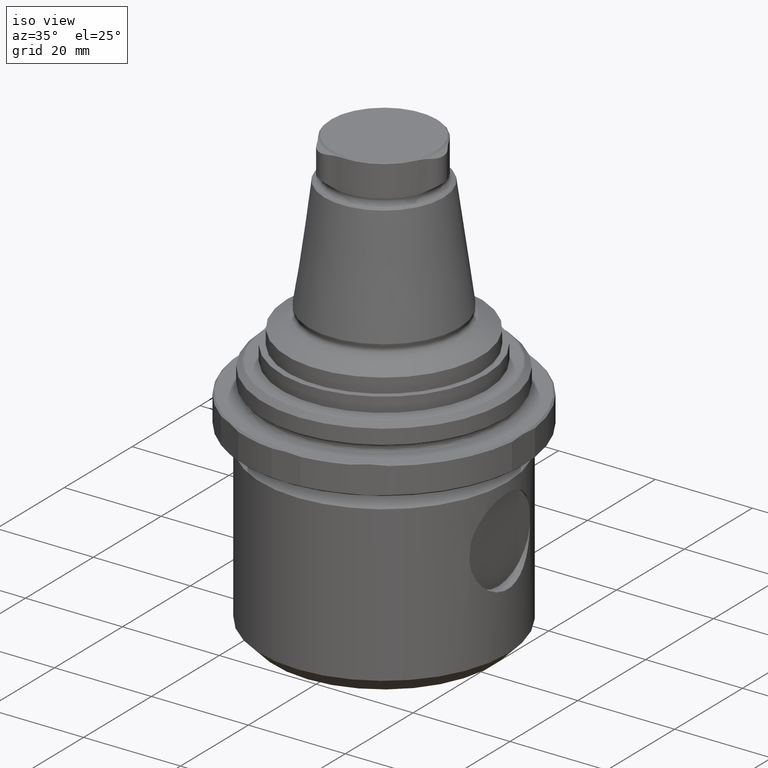
[diagram: clean part render]
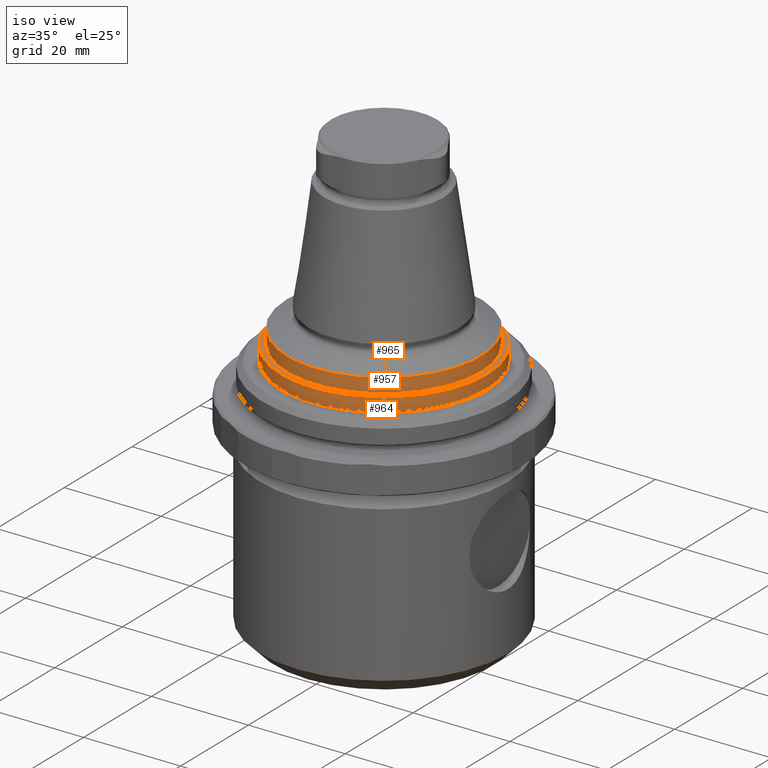
[diagram: same view with one multi-face feature highlighted, each face labeled with its STEP entity id]
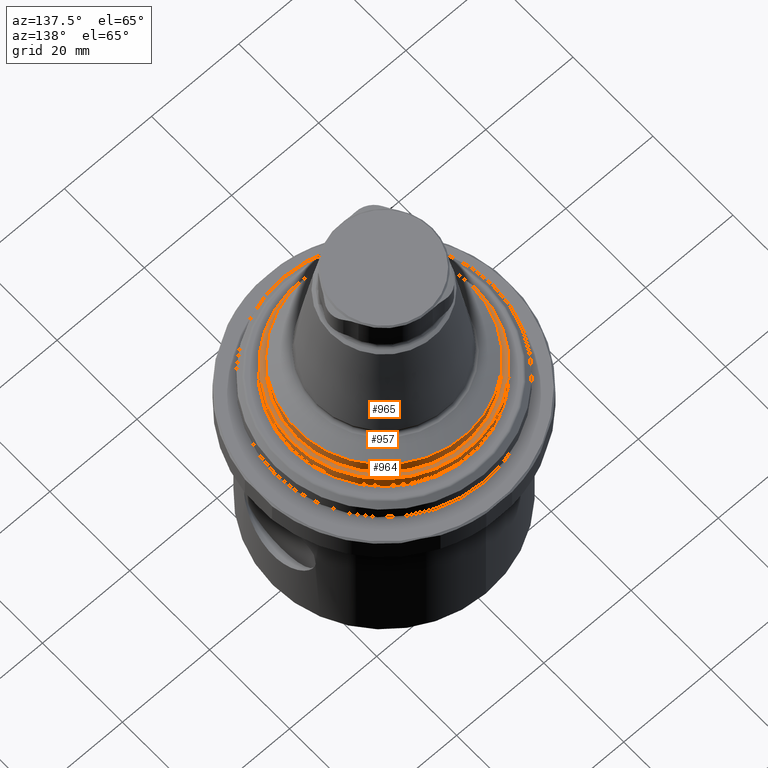
[diagram: same view with one multi-face feature highlighted, each face labeled with its STEP entity id]
A machine part, iso view. The highlighted faces form ONE feature: a stepped (counterbored) hole: 2 coaxial cylindrical walls of radii 20 -> 21.2 mm joined by 1 annular planar shoulder face(s). The faces share edges in the B-rep.
A second angle (auxiliary view) of the same feature is appended — it is thin or edge-on in the first view.
Their STEP definitions:
[1] entity #964 (Cylinder):
#179=ORIENTED_EDGE('',*,*,#444,.T.);
#180=ORIENTED_EDGE('',*,*,#445,.T.);
#444=EDGE_CURVE('',#579,#579,#676,.T.);
#445=EDGE_CURVE('',#580,#580,#677,.T.);
#579=VERTEX_POINT('',#1493);
#580=VERTEX_POINT('',#1495);
#676=CIRCLE('',#1057,21.2);
#677=CIRCLE('',#1058,21.2);
#740=EDGE_LOOP('',(#179));
#741=EDGE_LOOP('',(#180));
#840=FACE_BOUND('',#740,.T.);
#841=FACE_BOUND('',#741,.T.);
#929=CYLINDRICAL_SURFACE('',#1056,21.2);
#964=ADVANCED_FACE('',(#840,#841),#929,.T.);
#1056=AXIS2_PLACEMENT_3D('',#1491,#1205,#1206);
#1057=AXIS2_PLACEMENT_3D('',#1492,#1207,#1208);
#1058=AXIS2_PLACEMENT_3D('',#1494,#1209,#1210);
#1205=DIRECTION('',(-5.5264198129461E-16,7.81688594334958E-18,-1.));
#1206=DIRECTION('',(-1.,9.77164313006873E-16,5.58279830278911E-16));
#1207=DIRECTION('',(5.5264198129461E-16,5.34134317477693E-17,1.));
#1208=DIRECTION('',(1.,-9.77164313006873E-16,-5.58279830278911E-16));
#1209=DIRECTION('',(-5.5264198129461E-16,6.90472036344684E-17,-1.));
#1210=DIRECTION('',(-1.,9.77164313006873E-16,5.58279830278911E-16));
#1491=CARTESIAN_POINT('',(-8.47844763428131E-14,-9.81762604376195E-14,6.5040707856479));
#1492=CARTESIAN_POINT('',(-8.5613439314755E-14,-9.81645351087045E-14,5.0040707856479));
#1493=CARTESIAN_POINT('',(21.1999999999999,-1.1888041854445E-13,5.00407078564789));
#1494=CARTESIAN_POINT('',(-8.39555133708712E-14,-9.81879857665345E-14,8.0040707856479));
#1495=CARTESIAN_POINT('',(-21.2000000000001,-7.74721023307888E-14,8.00407078564792));
[2] entity #957 (Cylinder):
#165=ORIENTED_EDGE('',*,*,#435,.T.);
#166=ORIENTED_EDGE('',*,*,#436,.F.);
#435=EDGE_CURVE('',#570,#570,#667,.T.);
#436=EDGE_CURVE('',#571,#571,#668,.F.);
#570=VERTEX_POINT('',#1468);
#571=VERTEX_POINT('',#1470);
#667=CIRCLE('',#1041,20.);
#668=CIRCLE('',#1042,20.);
#726=EDGE_LOOP('',(#165));
#727=EDGE_LOOP('',(#166));
#826=FACE_BOUND('',#726,.T.);
#827=FACE_BOUND('',#727,.T.);
#926=CYLINDRICAL_SURFACE('',#1040,20.);
#957=ADVANCED_FACE('',(#826,#827),#926,.T.);
#1040=AXIS2_PLACEMENT_3D('',#1466,#1173,#1174);
#1041=AXIS2_PLACEMENT_3D('',#1467,#1175,#1176);
#1042=AXIS2_PLACEMENT_3D('',#1469,#1177,#1178);
#1173=DIRECTION('',(-4.20111564119382E-16,-8.51929323965368E-24,-1.));
#1174=DIRECTION('',(-1.,9.77164313006873E-16,4.20111561806759E-16));
#1175=DIRECTION('',(-4.20111564119382E-16,-8.51929323965368E-24,-1.));
#1176=DIRECTION('',(-1.,9.77164313006873E-16,4.20111561806759E-16));
#1177=DIRECTION('',(5.5264198129461E-16,-6.90472036344684E-17,1.));
#1178=DIRECTION('',(1.,0.,-5.5264198129461E-16));
#1466=CARTESIAN_POINT('',(-6.77586978396813E-14,-9.81645347466345E-14,47.5040707856479));
#1467=CARTESIAN_POINT('',(-8.30927699300387E-14,-9.81645350575887E-14,11.0040707856479));
#1468=CARTESIAN_POINT('',(-20.0000000000001,-7.86212487974513E-14,11.0040707856479));
#1469=CARTESIAN_POINT('',(-8.43531046223969E-14,-9.81645350831466E-14,8.0040707856479));
#1470=CARTESIAN_POINT('',(19.9999999999999,-9.81645350831466E-14,8.00407078564789));
[3] entity #965 (Plane):
#126=PLANE('',#1059);
#181=ORIENTED_EDGE('',*,*,#445,.F.);
#182=ORIENTED_EDGE('',*,*,#436,.T.);
#436=EDGE_CURVE('',#571,#571,#668,.F.);
#445=EDGE_CURVE('',#580,#580,#677,.T.);
#571=VERTEX_POINT('',#1470);
#580=VERTEX_POINT('',#1495);
#668=CIRCLE('',#1042,20.);
#677=CIRCLE('',#1058,21.2);
#742=EDGE_LOOP('',(#181));
#743=EDGE_LOOP('',(#182));
#842=FACE_BOUND('',#742,.T.);
#843=FACE_BOUND('',#743,.T.);
#965=ADVANCED_FACE('',(#842,#843),#126,.T.);
#1042=AXIS2_PLACEMENT_3D('',#1469,#1177,#1178);
#1058=AXIS2_PLACEMENT_3D('',#1494,#1209,#1210);
#1059=AXIS2_PLACEMENT_3D('',#1496,#1211,#1212);
#1177=DIRECTION('',(5.5264198129461E-16,-6.90472036344684E-17,1.));
#1178=DIRECTION('',(1.,0.,-5.5264198129461E-16));
#1209=DIRECTION('',(-5.5264198129461E-16,6.90472036344684E-17,-1.));
#1210=DIRECTION('',(-1.,9.77164313006873E-16,5.58279830278911E-16));
#1211=DIRECTION('',(5.5264198129461E-16,-6.90472036344684E-17,1.));
#1212=DIRECTION('',(-3.55103316543315E-16,1.,6.90471738482395E-17));
#1469=CARTESIAN_POINT('',(-8.43531046223969E-14,-9.81645350831466E-14,8.0040707856479));
#1470=CARTESIAN_POINT('',(19.9999999999999,-9.81645350831466E-14,8.00407078564789));
#1494=CARTESIAN_POINT('',(-8.39555133708712E-14,-9.81879857665345E-14,8.0040707856479));
#1495=CARTESIAN_POINT('',(-21.2000000000001,-7.74721023307888E-14,8.00407078564792));
#1496=CARTESIAN_POINT('',(-8.39555133708712E-14,-9.81879857665345E-14,8.0040707856479));